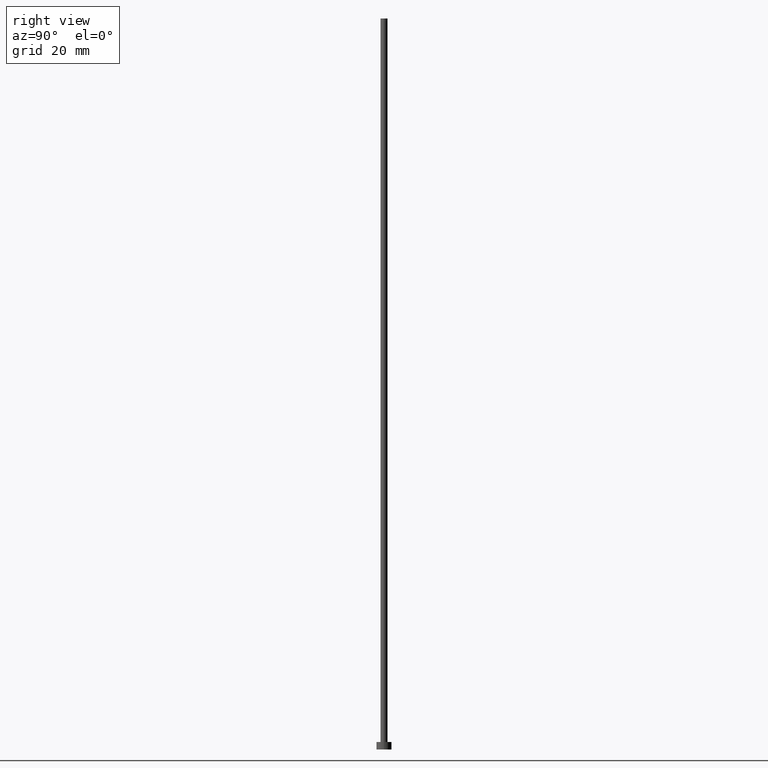
[diagram: clean part render]
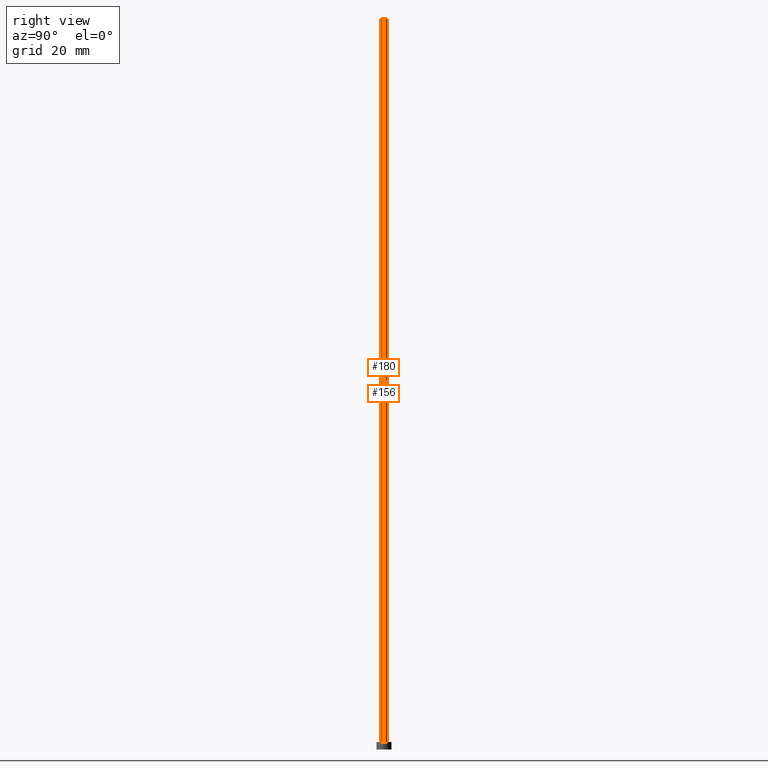
[diagram: same view with one multi-face feature highlighted, each face labeled with its STEP entity id]
A machine part, right view. The highlighted faces form ONE feature: a constant-radius fillet chain: 2 tangent blend faces with common blend radius 0.7 mm. The faces share edges in the B-rep.
Their STEP definitions:
[1] entity #180 (Cylinder):
#1 = VERTEX_POINT ( 'NONE', #148 ) ;
#9 = DIRECTION ( 'NONE',  ( 0.000000000000000000, 0.000000000000000000, 1.000000000000000000 ) ) ;
#12 = LINE ( 'NONE', #134, #98 ) ;
#25 = CARTESIAN_POINT ( 'NONE',  ( 0.000000000000000000, 0.000000000000000000, 145.0000000000000000 ) ) ;
#27 = AXIS2_PLACEMENT_3D ( 'NONE', #241, #64, #45 ) ;
#38 = EDGE_CURVE ( 'NONE', #158, #176, #72, .T. ) ;
#44 = DIRECTION ( 'NONE',  ( -0.000000000000000000, -0.000000000000000000, -1.000000000000000000 ) ) ;
#45 = DIRECTION ( 'NONE',  ( 1.000000000000000000, 0.000000000000000000, 0.000000000000000000 ) ) ;
#48 = DIRECTION ( 'NONE',  ( -1.000000000000000000, 0.000000000000000000, 0.000000000000000000 ) ) ;
#55 = LINE ( 'NONE', #73, #175 ) ;
#64 = DIRECTION ( 'NONE',  ( 0.000000000000000000, 0.000000000000000000, 1.000000000000000000 ) ) ;
#68 = CARTESIAN_POINT ( 'NONE',  ( 0.6999999999999999556, 8.572527594031471957E-17, 1.500000000000000000 ) ) ;
#69 = FACE_OUTER_BOUND ( 'NONE', #255, .T. ) ;
#72 = CIRCLE ( 'NONE', #27, 0.6999999999999999556 ) ;
#73 = CARTESIAN_POINT ( 'NONE',  ( 0.6999999999999999556, 8.572527594031471957E-17, 145.0000000000000000 ) ) ;
#76 = AXIS2_PLACEMENT_3D ( 'NONE', #25, #44, #48 ) ;
#86 = VERTEX_POINT ( 'NONE', #87 ) ;
#87 = CARTESIAN_POINT ( 'NONE',  ( 0.6999999999999999556, 8.572527594031471957E-17, 145.0000000000000000 ) ) ;
#89 = CYLINDRICAL_SURFACE ( 'NONE', #76, 0.6999999999999999556 ) ;
#97 = DIRECTION ( 'NONE',  ( -0.000000000000000000, -0.000000000000000000, -1.000000000000000000 ) ) ;
#98 = VECTOR ( 'NONE', #138, 1000.000000000000000 ) ;
#116 = CIRCLE ( 'NONE', #251, 0.6999999999999999556 ) ;
#127 = ORIENTED_EDGE ( 'NONE', *, *, #38, .T. ) ;
#134 = CARTESIAN_POINT ( 'NONE',  ( -0.6999999999999999556, 0.000000000000000000, 145.0000000000000000 ) ) ;
#138 = DIRECTION ( 'NONE',  ( -0.000000000000000000, -0.000000000000000000, -1.000000000000000000 ) ) ;
#148 = CARTESIAN_POINT ( 'NONE',  ( -0.6999999999999999556, 0.000000000000000000, 145.0000000000000000 ) ) ;
#150 = CARTESIAN_POINT ( 'NONE',  ( -0.6999999999999999556, 0.000000000000000000, 1.500000000000000000 ) ) ;
#158 = VERTEX_POINT ( 'NONE', #150 ) ;
#175 = VECTOR ( 'NONE', #97, 1000.000000000000000 ) ;
#176 = VERTEX_POINT ( 'NONE', #68 ) ;
#179 = ORIENTED_EDGE ( 'NONE', *, *, #237, .F. ) ;
#180 = ADVANCED_FACE ( 'NONE', ( #69 ), #89, .T. ) ;
#224 = EDGE_CURVE ( 'NONE', #1, #86, #116, .T. ) ;
#232 = EDGE_CURVE ( 'NONE', #1, #158, #12, .T. ) ;
#233 = CARTESIAN_POINT ( 'NONE',  ( 0.000000000000000000, 0.000000000000000000, 145.0000000000000000 ) ) ;
#236 = ORIENTED_EDGE ( 'NONE', *, *, #232, .T. ) ;
#237 = EDGE_CURVE ( 'NONE', #86, #176, #55, .T. ) ;
#241 = CARTESIAN_POINT ( 'NONE',  ( 0.000000000000000000, 0.000000000000000000, 1.500000000000000000 ) ) ;
#250 = DIRECTION ( 'NONE',  ( 1.000000000000000000, 0.000000000000000000, 0.000000000000000000 ) ) ;
#251 = AXIS2_PLACEMENT_3D ( 'NONE', #233, #9, #250 ) ;
#252 = ORIENTED_EDGE ( 'NONE', *, *, #224, .F. ) ;
#255 = EDGE_LOOP ( 'NONE', ( #179, #252, #236, #127 ) ) ;
[2] entity #156 (Cylinder):
#1 = VERTEX_POINT ( 'NONE', #148 ) ;
#8 = DIRECTION ( 'NONE',  ( 0.000000000000000000, 0.000000000000000000, 1.000000000000000000 ) ) ;
#12 = LINE ( 'NONE', #134, #98 ) ;
#13 = EDGE_CURVE ( 'NONE', #176, #158, #254, .T. ) ;
#20 = CARTESIAN_POINT ( 'NONE',  ( 0.000000000000000000, 0.000000000000000000, 145.0000000000000000 ) ) ;
#42 = ORIENTED_EDGE ( 'NONE', *, *, #237, .T. ) ;
#55 = LINE ( 'NONE', #73, #175 ) ;
#68 = CARTESIAN_POINT ( 'NONE',  ( 0.6999999999999999556, 8.572527594031471957E-17, 1.500000000000000000 ) ) ;
#73 = CARTESIAN_POINT ( 'NONE',  ( 0.6999999999999999556, 8.572527594031471957E-17, 145.0000000000000000 ) ) ;
#82 = ORIENTED_EDGE ( 'NONE', *, *, #129, .F. ) ;
#86 = VERTEX_POINT ( 'NONE', #87 ) ;
#87 = CARTESIAN_POINT ( 'NONE',  ( 0.6999999999999999556, 8.572527594031471957E-17, 145.0000000000000000 ) ) ;
#91 = DIRECTION ( 'NONE',  ( 0.000000000000000000, 0.000000000000000000, 1.000000000000000000 ) ) ;
#92 = AXIS2_PLACEMENT_3D ( 'NONE', #20, #203, #147 ) ;
#97 = DIRECTION ( 'NONE',  ( -0.000000000000000000, -0.000000000000000000, -1.000000000000000000 ) ) ;
#98 = VECTOR ( 'NONE', #138, 1000.000000000000000 ) ;
#105 = EDGE_LOOP ( 'NONE', ( #82, #42, #197, #107 ) ) ;
#107 = ORIENTED_EDGE ( 'NONE', *, *, #232, .F. ) ;
#112 = DIRECTION ( 'NONE',  ( 1.000000000000000000, 0.000000000000000000, 0.000000000000000000 ) ) ;
#115 = CARTESIAN_POINT ( 'NONE',  ( 0.000000000000000000, 0.000000000000000000, 1.500000000000000000 ) ) ;
#129 = EDGE_CURVE ( 'NONE', #86, #1, #171, .T. ) ;
#134 = CARTESIAN_POINT ( 'NONE',  ( -0.6999999999999999556, 0.000000000000000000, 145.0000000000000000 ) ) ;
#138 = DIRECTION ( 'NONE',  ( -0.000000000000000000, -0.000000000000000000, -1.000000000000000000 ) ) ;
#147 = DIRECTION ( 'NONE',  ( -1.000000000000000000, 0.000000000000000000, 0.000000000000000000 ) ) ;
#148 = CARTESIAN_POINT ( 'NONE',  ( -0.6999999999999999556, 0.000000000000000000, 145.0000000000000000 ) ) ;
#150 = CARTESIAN_POINT ( 'NONE',  ( -0.6999999999999999556, 0.000000000000000000, 1.500000000000000000 ) ) ;
#152 = AXIS2_PLACEMENT_3D ( 'NONE', #115, #91, #112 ) ;
#156 = ADVANCED_FACE ( 'NONE', ( #182 ), #199, .T. ) ;
#158 = VERTEX_POINT ( 'NONE', #150 ) ;
#168 = DIRECTION ( 'NONE',  ( 1.000000000000000000, 0.000000000000000000, 0.000000000000000000 ) ) ;
#171 = CIRCLE ( 'NONE', #201, 0.6999999999999999556 ) ;
#175 = VECTOR ( 'NONE', #97, 1000.000000000000000 ) ;
#176 = VERTEX_POINT ( 'NONE', #68 ) ;
#182 = FACE_OUTER_BOUND ( 'NONE', #105, .T. ) ;
#186 = CARTESIAN_POINT ( 'NONE',  ( 0.000000000000000000, 0.000000000000000000, 145.0000000000000000 ) ) ;
#197 = ORIENTED_EDGE ( 'NONE', *, *, #13, .T. ) ;
#199 = CYLINDRICAL_SURFACE ( 'NONE', #92, 0.6999999999999999556 ) ;
#201 = AXIS2_PLACEMENT_3D ( 'NONE', #186, #8, #168 ) ;
#203 = DIRECTION ( 'NONE',  ( -0.000000000000000000, -0.000000000000000000, -1.000000000000000000 ) ) ;
#232 = EDGE_CURVE ( 'NONE', #1, #158, #12, .T. ) ;
#237 = EDGE_CURVE ( 'NONE', #86, #176, #55, .T. ) ;
#254 = CIRCLE ( 'NONE', #152, 0.6999999999999999556 ) ;